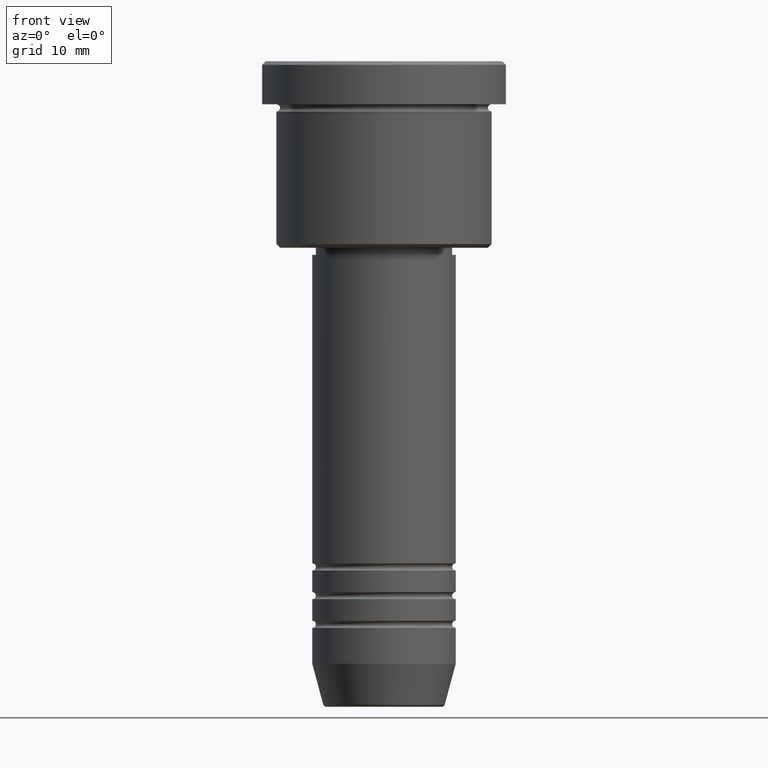
[diagram: clean part render]
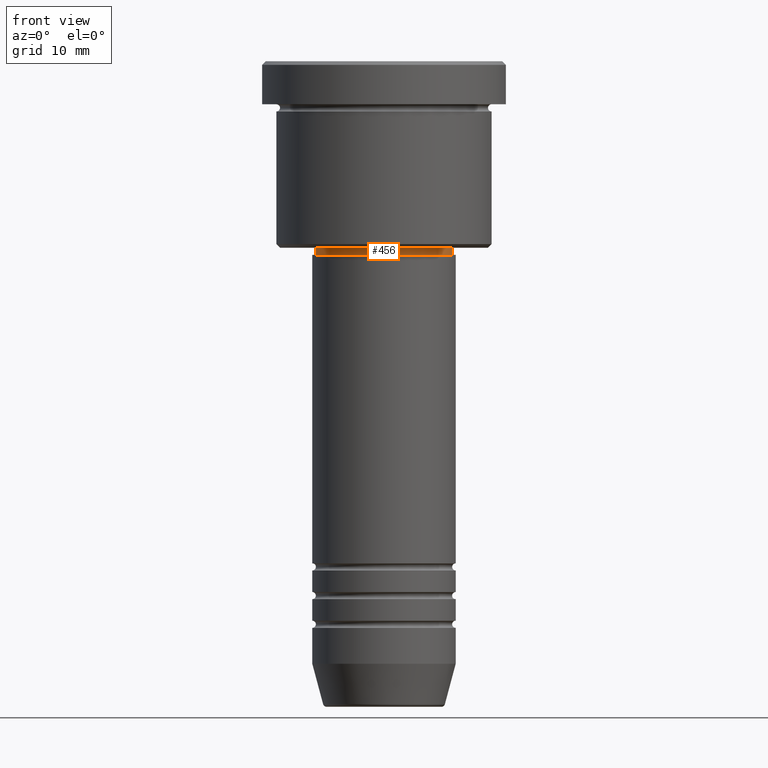
[diagram: same view with one face highlighted and labeled with its STEP entity id]
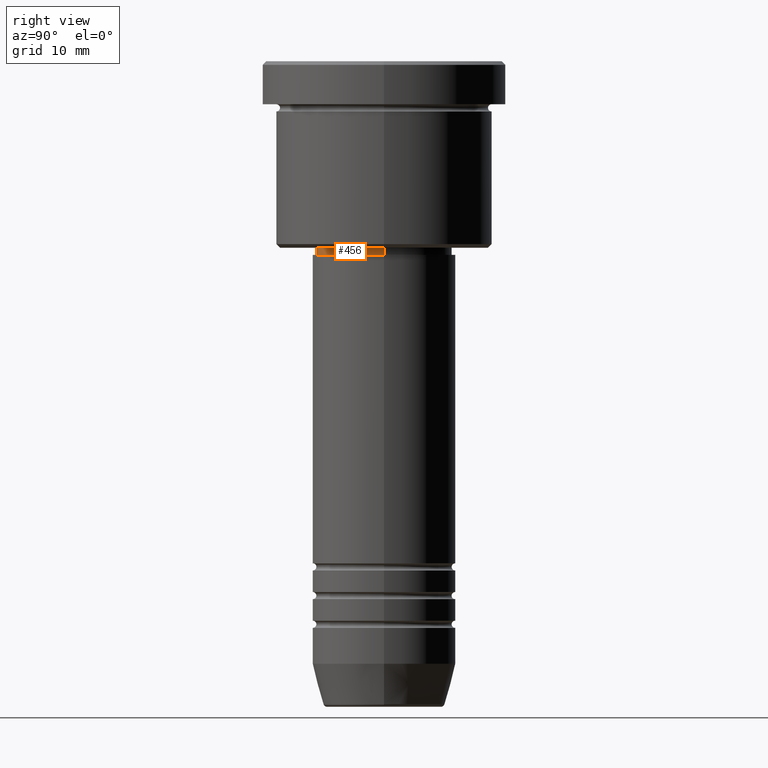
[diagram: same view with one face highlighted and labeled with its STEP entity id]
A machine part, front view. The second image highlights one B-rep face of the part: STEP entity #456.
A second angle (right view) of the same face is appended — the face is thin or edge-on in the first view.
In plain terms, the highlighted cylindrical surface (partial cylindrical patch) has radius 9.5 mm, axis along (-0, -0, 1).
Its self-contained STEP definition (entity closure, byte-faithful):
#35 = DIRECTION ( 'NONE',  ( -0.000000000000000000, -0.000000000000000000, 1.000000000000000000 ) ) ;
#42 = VECTOR ( 'NONE', #1030, 1000.000000000000000 ) ;
#43 = FACE_OUTER_BOUND ( 'NONE', #806, .T. ) ;
#116 = ORIENTED_EDGE ( 'NONE', *, *, #1077, .T. ) ;
#171 = ORIENTED_EDGE ( 'NONE', *, *, #877, .T. ) ;
#190 = DIRECTION ( 'NONE',  ( 1.000000000000000000, 0.000000000000000000, 0.000000000000000000 ) ) ;
#316 = LINE ( 'NONE', #1132, #759 ) ;
#322 = AXIS2_PLACEMENT_3D ( 'NONE', #1160, #338, #509 ) ;
#338 = DIRECTION ( 'NONE',  ( -0.000000000000000000, -0.000000000000000000, 1.000000000000000000 ) ) ;
#343 = CARTESIAN_POINT ( 'NONE',  ( -9.500000000000001776, 1.163414459189985682E-15, -25.99999999999999645 ) ) ;
#402 = EDGE_CURVE ( 'NONE', #754, #747, #835, .T. ) ;
#456 = ADVANCED_FACE ( 'NONE', ( #43 ), #783, .T. ) ;
#470 = AXIS2_PLACEMENT_3D ( 'NONE', #561, #825, #190 ) ;
#509 = DIRECTION ( 'NONE',  ( 1.000000000000000000, 0.000000000000000000, 0.000000000000000000 ) ) ;
#547 = EDGE_CURVE ( 'NONE', #747, #596, #775, .T. ) ;
#561 = CARTESIAN_POINT ( 'NONE',  ( 0.000000000000000000, 0.000000000000000000, -27.00000000000000000 ) ) ;
#577 = DIRECTION ( 'NONE',  ( -0.000000000000000000, -0.000000000000000000, 1.000000000000000000 ) ) ;
#596 = VERTEX_POINT ( 'NONE', #953 ) ;
#601 = VERTEX_POINT ( 'NONE', #1123 ) ;
#616 = DIRECTION ( 'NONE',  ( 1.000000000000000000, 0.000000000000000000, 0.000000000000000000 ) ) ;
#656 = CARTESIAN_POINT ( 'NONE',  ( -9.500000000000001776, 1.163414459189985682E-15, 0.000000000000000000 ) ) ;
#664 = CIRCLE ( 'NONE', #470, 9.500000000000000000 ) ;
#747 = VERTEX_POINT ( 'NONE', #343 ) ;
#754 = VERTEX_POINT ( 'NONE', #785 ) ;
#759 = VECTOR ( 'NONE', #577, 1000.000000000000000 ) ;
#775 = CIRCLE ( 'NONE', #1079, 9.500000000000001776 ) ;
#783 = CYLINDRICAL_SURFACE ( 'NONE', #322, 9.500000000000001776 ) ;
#785 = CARTESIAN_POINT ( 'NONE',  ( -9.500000000000000000, 1.163414459189985485E-15, -27.00000000000000000 ) ) ;
#806 = EDGE_LOOP ( 'NONE', ( #1045, #171, #116, #908 ) ) ;
#825 = DIRECTION ( 'NONE',  ( -0.000000000000000000, -0.000000000000000000, 1.000000000000000000 ) ) ;
#835 = LINE ( 'NONE', #656, #42 ) ;
#877 = EDGE_CURVE ( 'NONE', #754, #601, #664, .T. ) ;
#908 = ORIENTED_EDGE ( 'NONE', *, *, #547, .F. ) ;
#953 = CARTESIAN_POINT ( 'NONE',  ( 9.500000000000001776, 0.000000000000000000, -25.99999999999999645 ) ) ;
#1030 = DIRECTION ( 'NONE',  ( -0.000000000000000000, -0.000000000000000000, 1.000000000000000000 ) ) ;
#1045 = ORIENTED_EDGE ( 'NONE', *, *, #402, .F. ) ;
#1064 = CARTESIAN_POINT ( 'NONE',  ( 0.000000000000000000, 0.000000000000000000, -25.99999999999999645 ) ) ;
#1077 = EDGE_CURVE ( 'NONE', #601, #596, #316, .T. ) ;
#1079 = AXIS2_PLACEMENT_3D ( 'NONE', #1064, #35, #616 ) ;
#1123 = CARTESIAN_POINT ( 'NONE',  ( 9.500000000000000000, 0.000000000000000000, -27.00000000000000000 ) ) ;
#1132 = CARTESIAN_POINT ( 'NONE',  ( 9.500000000000001776, 0.000000000000000000, 0.000000000000000000 ) ) ;
#1160 = CARTESIAN_POINT ( 'NONE',  ( 0.000000000000000000, 0.000000000000000000, 0.000000000000000000 ) ) ;